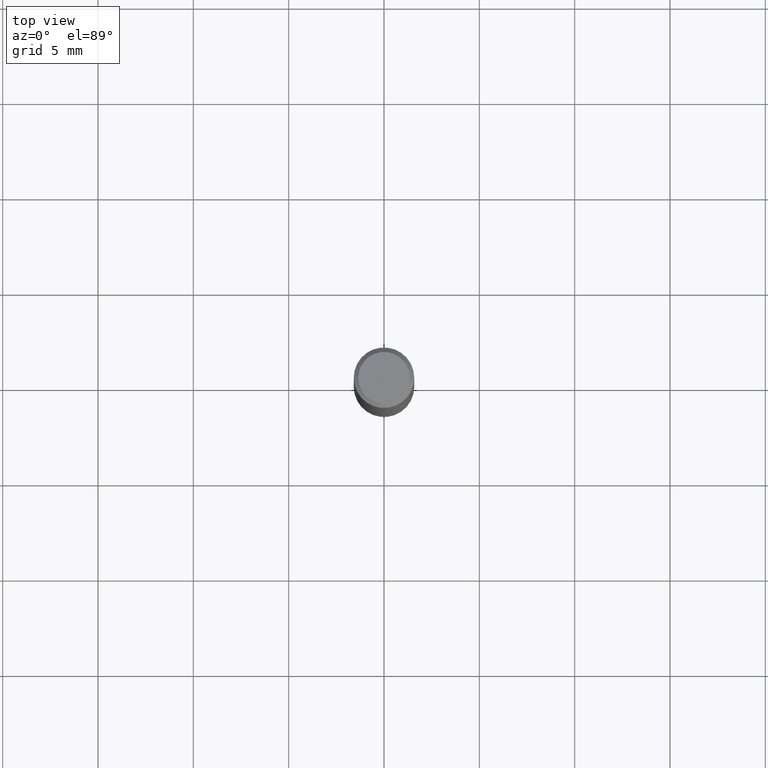
[diagram: clean part render]
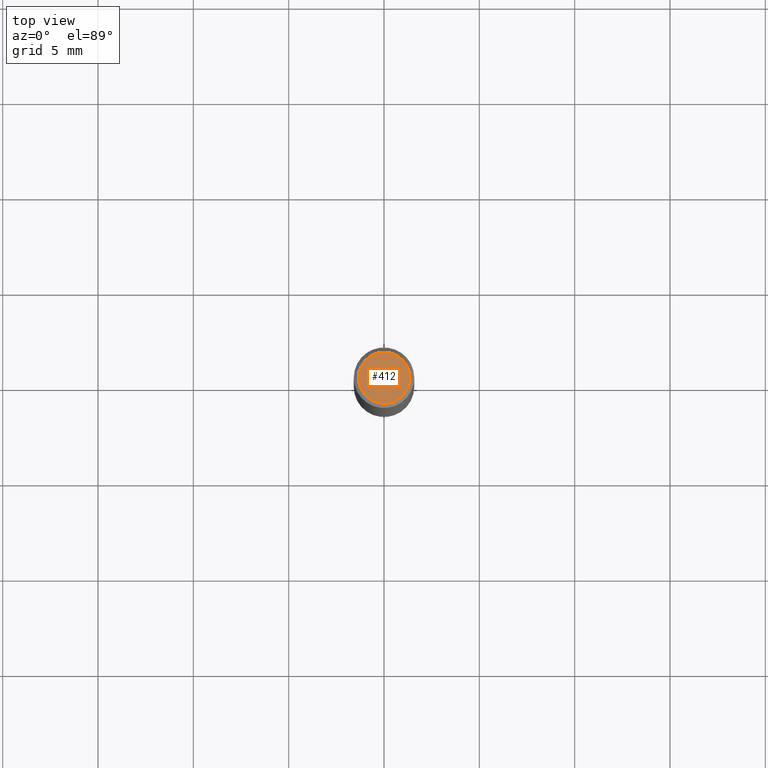
[diagram: same view with one face highlighted and labeled with its STEP entity id]
A machine part, top view. The second image highlights one B-rep face of the part: STEP entity #412.
In plain terms, the highlighted planar face has unit normal (0, -0, -1).
Its self-contained STEP definition (entity closure, byte-faithful):
#33 = EDGE_LOOP ( 'NONE', ( #499, #230 ) ) ;
#35 = VERTEX_POINT ( 'NONE', #235 ) ;
#122 = FACE_OUTER_BOUND ( 'NONE', #33, .T. ) ;
#126 = DIRECTION ( 'NONE',  ( 1.000000000000000000, -6.982962677686266711E-15, 4.875930095424100059E-29 ) ) ;
#128 = AXIS2_PLACEMENT_3D ( 'NONE', #352, #532, #126 ) ;
#169 = DIRECTION ( 'NONE',  ( 2.438088387897960049E-29, -3.491481338843145188E-15, -1.000000000000000000 ) ) ;
#175 = CIRCLE ( 'NONE', #546, 0.05312499999999999861 ) ;
#199 = DIRECTION ( 'NONE',  ( -2.445468806185136597E-29, 3.491481338843145583E-15, 1.000000000000000000 ) ) ;
#230 = ORIENTED_EDGE ( 'NONE', *, *, #424, .T. ) ;
#235 = CARTESIAN_POINT ( 'NONE',  ( -0.05312499999999999861, 3.873362110279099094E-16, -5.787680772773044021E-18 ) ) ;
#244 = EDGE_CURVE ( 'NONE', #35, #419, #175, .T. ) ;
#257 = CARTESIAN_POINT ( 'NONE',  ( 0.05312499999999999861, -4.129888592719939842E-16, -5.787680772767651417E-18 ) ) ;
#302 = PLANE ( 'NONE',  #487 ) ;
#336 = DIRECTION ( 'NONE',  ( 1.000000000000000000, -6.982962677686266711E-15, 4.875930095424100059E-29 ) ) ;
#347 = CIRCLE ( 'NONE', #128, 0.05312499999999999861 ) ;
#352 = CARTESIAN_POINT ( 'NONE',  ( 1.415359278996747967E-46, -2.020757941330909984E-32, -5.787680772770392401E-18 ) ) ;
#412 = ADVANCED_FACE ( 'NONE', ( #122 ), #302, .F. ) ;
#419 = VERTEX_POINT ( 'NONE', #257 ) ;
#424 = EDGE_CURVE ( 'NONE', #419, #35, #347, .T. ) ;
#430 = CARTESIAN_POINT ( 'NONE',  ( 1.415359278996747967E-46, -2.020757941330909984E-32, -5.787680772770392401E-18 ) ) ;
#435 = DIRECTION ( 'NONE',  ( -1.000000000000000000, 6.982962677686265922E-15, -4.876176775795935793E-29 ) ) ;
#439 = CARTESIAN_POINT ( 'NONE',  ( 7.076796394983739835E-47, -1.010378970665454992E-32, -2.893840386385196200E-18 ) ) ;
#487 = AXIS2_PLACEMENT_3D ( 'NONE', #439, #169, #435 ) ;
#499 = ORIENTED_EDGE ( 'NONE', *, *, #244, .T. ) ;
#532 = DIRECTION ( 'NONE',  ( -2.445468806185136597E-29, 3.491481338843145583E-15, 1.000000000000000000 ) ) ;
#546 = AXIS2_PLACEMENT_3D ( 'NONE', #430, #199, #336 ) ;